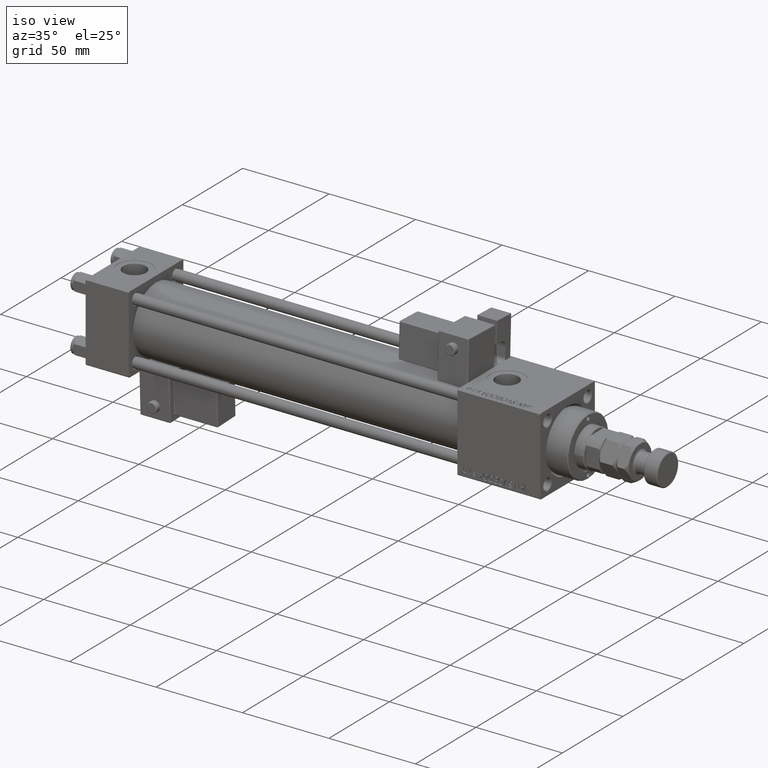
[diagram: clean part render]
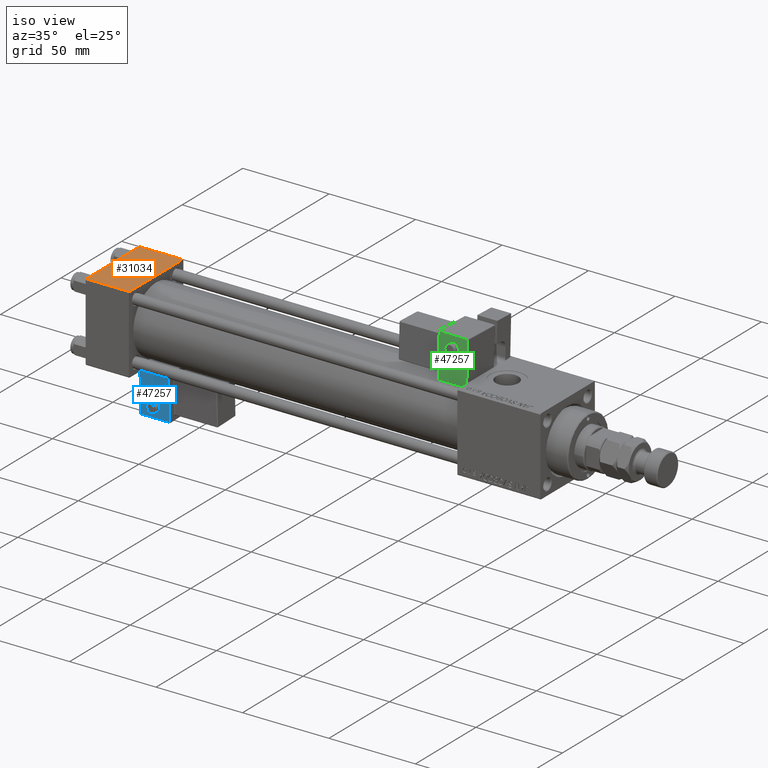
[diagram: same view with three faces highlighted in distinct colors, each labeled with its STEP entity id]
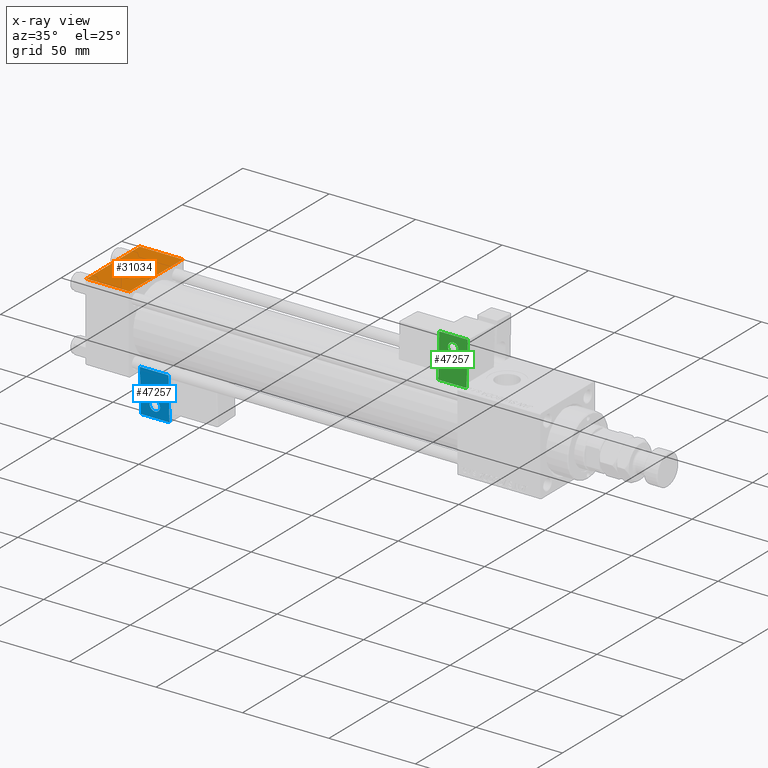
[diagram: x-ray of the same camera — body ghosted, the three highlighted faces saturated]
A machine part, iso view with three faces highlighted in distinct colors.
The next image is the same camera in x-ray (body ghosted, the three faces saturated) — at least one of them is partly hidden behind the body in this view.
Their STEP definitions:

[orange] entity #31034 — the highlighted planar face has unit normal (0, 0, -1).
#17 = EDGE_LOOP ( 'NONE', ( #2150, #1779 ) ) ;
#1244 = CARTESIAN_POINT ( 'NONE',  ( 25.00000000000000000, 22.50000000000000000, 22.50000000000000355 ) ) ;
#1574 = EDGE_CURVE ( 'NONE', #50907, #28562, #43920, .T. ) ;
#1725 = CARTESIAN_POINT ( 'NONE',  ( 25.00000000000000000, -21.99999999999997868, 22.50000000000000000 ) ) ;
#1779 = ORIENTED_EDGE ( 'NONE', *, *, #1574, .F. ) ;
#2150 = ORIENTED_EDGE ( 'NONE', *, *, #44711, .F. ) ;
#4477 = VECTOR ( 'NONE', #18783, 1000.000000000000000 ) ;
#6136 = CARTESIAN_POINT ( 'NONE',  ( 2.500000000000003997, -5.100766768294543310E-16, 22.50000000000000000 ) ) ;
#6388 = ORIENTED_EDGE ( 'NONE', *, *, #11279, .T. ) ;
#7810 = LINE ( 'NONE', #8345, #31891 ) ;
#8345 = CARTESIAN_POINT ( 'NONE',  ( 25.00000000000000000, -21.99999999999999289, 22.50000000000000000 ) ) ;
#8431 = CIRCLE ( 'NONE', #33839, 9.999999999999998224 ) ;
#8593 = VERTEX_POINT ( 'NONE', #24150 ) ;
#10019 = PLANE ( 'NONE',  #44856 ) ;
#11279 = EDGE_CURVE ( 'NONE', #8593, #43375, #7810, .T. ) ;
#11896 = EDGE_CURVE ( 'NONE', #44316, #8593, #31164, .T. ) ;
#12329 = CARTESIAN_POINT ( 'NONE',  ( 12.50000000000000000, -1.734723475976807094E-15, 22.50000000000000000 ) ) ;
#13253 = ORIENTED_EDGE ( 'NONE', *, *, #40896, .F. ) ;
#14029 = ORIENTED_EDGE ( 'NONE', *, *, #11896, .T. ) ;
#15237 = DIRECTION ( 'NONE',  ( 0.000000000000000000, -1.000000000000000000, -7.709882115452476934E-17 ) ) ;
#17166 = LINE ( 'NONE', #1244, #31031 ) ;
#18230 = CARTESIAN_POINT ( 'NONE',  ( 22.50000000000000000, -1.734723475976807094E-15, 22.50000000000000000 ) ) ;
#18248 = DIRECTION ( 'NONE',  ( 0.000000000000000000, -1.000000000000000000, -7.709882115452476934E-17 ) ) ;
#18783 = DIRECTION ( 'NONE',  ( -1.000000000000000000, 0.000000000000000000, 0.000000000000000000 ) ) ;
#19706 = EDGE_LOOP ( 'NONE', ( #14029, #6388, #13253, #25677 ) ) ;
#19796 = DIRECTION ( 'NONE',  ( 0.000000000000000000, 0.000000000000000000, 1.000000000000000000 ) ) ;
#22081 = DIRECTION ( 'NONE',  ( 0.000000000000000000, 7.709882115452476934E-17, -1.000000000000000000 ) ) ;
#24150 = CARTESIAN_POINT ( 'NONE',  ( 0.000000000000000000, -21.99999999999997868, 22.50000000000000000 ) ) ;
#24535 = DIRECTION ( 'NONE',  ( 1.000000000000000000, 0.000000000000000000, 0.000000000000000000 ) ) ;
#25677 = ORIENTED_EDGE ( 'NONE', *, *, #30117, .T. ) ;
#25727 = VERTEX_POINT ( 'NONE', #54056 ) ;
#26206 = DIRECTION ( 'NONE',  ( 0.000000000000000000, 1.000000000000000000, 7.709882115452476934E-17 ) ) ;
#27318 = CARTESIAN_POINT ( 'NONE',  ( 0.000000000000000000, 22.50000000000000000, 22.50000000000000355 ) ) ;
#27822 = LINE ( 'NONE', #39885, #4477 ) ;
#28562 = VERTEX_POINT ( 'NONE', #18230 ) ;
#30117 = EDGE_CURVE ( 'NONE', #25727, #44316, #27822, .T. ) ;
#31031 = VECTOR ( 'NONE', #18248, 1000.000000000000000 ) ;
#31034 = ADVANCED_FACE ( 'NONE', ( #51164, #38529 ), #10019, .F. ) ;
#31072 = VECTOR ( 'NONE', #15237, 1000.000000000000000 ) ;
#31164 = LINE ( 'NONE', #27318, #31072 ) ;
#31668 = AXIS2_PLACEMENT_3D ( 'NONE', #50423, #19796, #46015 ) ;
#31891 = VECTOR ( 'NONE', #24535, 1000.000000000000000 ) ;
#33839 = AXIS2_PLACEMENT_3D ( 'NONE', #12329, #46326, #46055 ) ;
#38529 = FACE_OUTER_BOUND ( 'NONE', #19706, .T. ) ;
#39885 = CARTESIAN_POINT ( 'NONE',  ( 0.000000000000000000, 21.99999999999999289, 22.50000000000000355 ) ) ;
#40896 = EDGE_CURVE ( 'NONE', #25727, #43375, #17166, .T. ) ;
#43375 = VERTEX_POINT ( 'NONE', #1725 ) ;
#43759 = CARTESIAN_POINT ( 'NONE',  ( 0.000000000000000000, 21.99999999999999289, 22.50000000000000355 ) ) ;
#43920 = CIRCLE ( 'NONE', #31668, 9.999999999999998224 ) ;
#44316 = VERTEX_POINT ( 'NONE', #43759 ) ;
#44711 = EDGE_CURVE ( 'NONE', #28562, #50907, #8431, .T. ) ;
#44856 = AXIS2_PLACEMENT_3D ( 'NONE', #51982, #22081, #26206 ) ;
#46015 = DIRECTION ( 'NONE',  ( 1.000000000000000000, 0.000000000000000000, 0.000000000000000000 ) ) ;
#46055 = DIRECTION ( 'NONE',  ( 1.000000000000000000, 0.000000000000000000, 0.000000000000000000 ) ) ;
#46326 = DIRECTION ( 'NONE',  ( 0.000000000000000000, 0.000000000000000000, 1.000000000000000000 ) ) ;
#50423 = CARTESIAN_POINT ( 'NONE',  ( 12.50000000000000000, -1.734723475976807094E-15, 22.50000000000000000 ) ) ;
#50907 = VERTEX_POINT ( 'NONE', #6136 ) ;
#51164 = FACE_BOUND ( 'NONE', #17, .T. ) ;
#51982 = CARTESIAN_POINT ( 'NONE',  ( 25.00000000000000000, 22.50000000000000000, 22.50000000000000355 ) ) ;
#54056 = CARTESIAN_POINT ( 'NONE',  ( 25.00000000000000000, 21.99999999999999289, 22.50000000000000355 ) ) ;

[blue] entity #47257 — the highlighted planar face has unit normal (0, 0.9994, 0.0353).
#260 = EDGE_CURVE ( 'NONE', #1995, #36800, #1104, .T. ) ;
#1104 = LINE ( 'NONE', #21691, #30755 ) ;
#1224 = CARTESIAN_POINT ( 'NONE',  ( 4.857225732735059864E-15, -33.75000000000000000, 24.50000000000000000 ) ) ;
#1338 = LINE ( 'NONE', #50994, #43316 ) ;
#1995 = VERTEX_POINT ( 'NONE', #23177 ) ;
#2195 = EDGE_CURVE ( 'NONE', #14242, #33135, #32557, .T. ) ;
#2398 = DIRECTION ( 'NONE',  ( 0.000000000000000000, 1.000000000000000000, 0.000000000000000000 ) ) ;
#3466 = VERTEX_POINT ( 'NONE', #47611 ) ;
#3974 = CARTESIAN_POINT ( 'NONE',  ( -8.250000000000003553, -33.75000000000000000, -0.5000000000000002220 ) ) ;
#5513 = VERTEX_POINT ( 'NONE', #32037 ) ;
#7050 = DIRECTION ( 'NONE',  ( 0.000000000000000000, -0.000000000000000000, 1.000000000000000000 ) ) ;
#7502 = AXIS2_PLACEMENT_3D ( 'NONE', #43308, #43851, #22479 ) ;
#8321 = DIRECTION ( 'NONE',  ( 0.000000000000000000, 0.000000000000000000, 1.000000000000000000 ) ) ;
#11160 = ORIENTED_EDGE ( 'NONE', *, *, #31105, .T. ) ;
#11433 = FACE_OUTER_BOUND ( 'NONE', #16073, .T. ) ;
#11624 = EDGE_CURVE ( 'NONE', #5513, #3466, #1338, .T. ) ;
#11886 = CIRCLE ( 'NONE', #7502, 2.999999999999999112 ) ;
#12998 = EDGE_CURVE ( 'NONE', #3466, #1995, #26734, .T. ) ;
#14063 = EDGE_CURVE ( 'NONE', #33135, #14242, #11886, .T. ) ;
#14242 = VERTEX_POINT ( 'NONE', #34978 ) ;
#14449 = ORIENTED_EDGE ( 'NONE', *, *, #11624, .T. ) ;
#14500 = DIRECTION ( 'NONE',  ( -1.334402673828313339E-16, 0.000000000000000000, 1.000000000000000000 ) ) ;
#15910 = ORIENTED_EDGE ( 'NONE', *, *, #260, .T. ) ;
#16028 = CARTESIAN_POINT ( 'NONE',  ( -4.336808689942017736E-16, -33.75000000000000000, 6.000000000000001776 ) ) ;
#16073 = EDGE_LOOP ( 'NONE', ( #50245, #15910, #11160, #14449 ) ) ;
#20519 = ORIENTED_EDGE ( 'NONE', *, *, #2195, .F. ) ;
#20590 = VECTOR ( 'NONE', #46749, 1000.000000000000000 ) ;
#21691 = CARTESIAN_POINT ( 'NONE',  ( -8.250000000000003553, -33.75000000000000000, 1.100882205908358788E-15 ) ) ;
#22479 = DIRECTION ( 'NONE',  ( 0.000000000000000000, 0.000000000000000000, 1.000000000000000000 ) ) ;
#23177 = CARTESIAN_POINT ( 'NONE',  ( -8.250000000000000000, -33.75000000000000000, 24.50000000000000355 ) ) ;
#23180 = CARTESIAN_POINT ( 'NONE',  ( 0.000000000000000000, -33.75000000000000000, -0.5000000000000002220 ) ) ;
#23558 = ORIENTED_EDGE ( 'NONE', *, *, #14063, .F. ) ;
#24147 = AXIS2_PLACEMENT_3D ( 'NONE', #32008, #2398, #7050 ) ;
#25528 = DIRECTION ( 'NONE',  ( -1.334402673828313093E-16, 0.000000000000000000, -1.000000000000000000 ) ) ;
#26734 = LINE ( 'NONE', #1224, #20590 ) ;
#26961 = EDGE_LOOP ( 'NONE', ( #23558, #20519 ) ) ;
#27305 = CARTESIAN_POINT ( 'NONE',  ( -4.336808689942017736E-16, -33.75000000000000000, 9.000000000000001776 ) ) ;
#30755 = VECTOR ( 'NONE', #25528, 1000.000000000000000 ) ;
#31105 = EDGE_CURVE ( 'NONE', #36800, #5513, #52253, .T. ) ;
#32008 = CARTESIAN_POINT ( 'NONE',  ( 0.000000000000000000, -33.75000000000000000, 0.000000000000000000 ) ) ;
#32037 = CARTESIAN_POINT ( 'NONE',  ( 8.250000000000003553, -33.75000000000000000, -0.5000000000000002220 ) ) ;
#32557 = CIRCLE ( 'NONE', #33412, 2.999999999999999112 ) ;
#33135 = VERTEX_POINT ( 'NONE', #27305 ) ;
#33412 = AXIS2_PLACEMENT_3D ( 'NONE', #16028, #49474, #8321 ) ;
#33452 = VECTOR ( 'NONE', #40154, 1000.000000000000000 ) ;
#34978 = CARTESIAN_POINT ( 'NONE',  ( -6.628682924999581145E-17, -33.75000000000000000, 3.000000000000001776 ) ) ;
#36124 = FACE_BOUND ( 'NONE', #26961, .T. ) ;
#36800 = VERTEX_POINT ( 'NONE', #3974 ) ;
#40154 = DIRECTION ( 'NONE',  ( 1.000000000000000000, 0.000000000000000000, 0.000000000000000000 ) ) ;
#43308 = CARTESIAN_POINT ( 'NONE',  ( -4.336808689942017736E-16, -33.75000000000000000, 6.000000000000001776 ) ) ;
#43316 = VECTOR ( 'NONE', #14500, 1000.000000000000000 ) ;
#43851 = DIRECTION ( 'NONE',  ( -0.000000000000000000, -1.000000000000000000, -0.000000000000000000 ) ) ;
#46749 = DIRECTION ( 'NONE',  ( -1.000000000000000000, 0.000000000000000000, 1.982541115402065110E-16 ) ) ;
#47257 = ADVANCED_FACE ( 'NONE', ( #11433, #36124 ), #49014, .F. ) ;
#47611 = CARTESIAN_POINT ( 'NONE',  ( 8.250000000000000000, -33.75000000000000000, 24.50000000000000000 ) ) ;
#49014 = PLANE ( 'NONE',  #24147 ) ;
#49474 = DIRECTION ( 'NONE',  ( -0.000000000000000000, -1.000000000000000000, -0.000000000000000000 ) ) ;
#50245 = ORIENTED_EDGE ( 'NONE', *, *, #12998, .T. ) ;
#50994 = CARTESIAN_POINT ( 'NONE',  ( 8.250000000000003553, -33.75000000000000000, 1.100882205908358986E-15 ) ) ;
#52253 = LINE ( 'NONE', #23180, #33452 ) ;

[green] entity #47257 — the highlighted planar face has unit normal (0, 0.9994, -0.0353).
#260 = EDGE_CURVE ( 'NONE', #1995, #36800, #1104, .T. ) ;
#1104 = LINE ( 'NONE', #21691, #30755 ) ;
#1224 = CARTESIAN_POINT ( 'NONE',  ( 4.857225732735059864E-15, -33.75000000000000000, 24.50000000000000000 ) ) ;
#1338 = LINE ( 'NONE', #50994, #43316 ) ;
#1995 = VERTEX_POINT ( 'NONE', #23177 ) ;
#2195 = EDGE_CURVE ( 'NONE', #14242, #33135, #32557, .T. ) ;
#2398 = DIRECTION ( 'NONE',  ( 0.000000000000000000, 1.000000000000000000, 0.000000000000000000 ) ) ;
#3466 = VERTEX_POINT ( 'NONE', #47611 ) ;
#3974 = CARTESIAN_POINT ( 'NONE',  ( -8.250000000000003553, -33.75000000000000000, -0.5000000000000002220 ) ) ;
#5513 = VERTEX_POINT ( 'NONE', #32037 ) ;
#7050 = DIRECTION ( 'NONE',  ( 0.000000000000000000, -0.000000000000000000, 1.000000000000000000 ) ) ;
#7502 = AXIS2_PLACEMENT_3D ( 'NONE', #43308, #43851, #22479 ) ;
#8321 = DIRECTION ( 'NONE',  ( 0.000000000000000000, 0.000000000000000000, 1.000000000000000000 ) ) ;
#11160 = ORIENTED_EDGE ( 'NONE', *, *, #31105, .T. ) ;
#11433 = FACE_OUTER_BOUND ( 'NONE', #16073, .T. ) ;
#11624 = EDGE_CURVE ( 'NONE', #5513, #3466, #1338, .T. ) ;
#11886 = CIRCLE ( 'NONE', #7502, 2.999999999999999112 ) ;
#12998 = EDGE_CURVE ( 'NONE', #3466, #1995, #26734, .T. ) ;
#14063 = EDGE_CURVE ( 'NONE', #33135, #14242, #11886, .T. ) ;
#14242 = VERTEX_POINT ( 'NONE', #34978 ) ;
#14449 = ORIENTED_EDGE ( 'NONE', *, *, #11624, .T. ) ;
#14500 = DIRECTION ( 'NONE',  ( -1.334402673828313339E-16, 0.000000000000000000, 1.000000000000000000 ) ) ;
#15910 = ORIENTED_EDGE ( 'NONE', *, *, #260, .T. ) ;
#16028 = CARTESIAN_POINT ( 'NONE',  ( -4.336808689942017736E-16, -33.75000000000000000, 6.000000000000001776 ) ) ;
#16073 = EDGE_LOOP ( 'NONE', ( #50245, #15910, #11160, #14449 ) ) ;
#20519 = ORIENTED_EDGE ( 'NONE', *, *, #2195, .F. ) ;
#20590 = VECTOR ( 'NONE', #46749, 1000.000000000000000 ) ;
#21691 = CARTESIAN_POINT ( 'NONE',  ( -8.250000000000003553, -33.75000000000000000, 1.100882205908358788E-15 ) ) ;
#22479 = DIRECTION ( 'NONE',  ( 0.000000000000000000, 0.000000000000000000, 1.000000000000000000 ) ) ;
#23177 = CARTESIAN_POINT ( 'NONE',  ( -8.250000000000000000, -33.75000000000000000, 24.50000000000000355 ) ) ;
#23180 = CARTESIAN_POINT ( 'NONE',  ( 0.000000000000000000, -33.75000000000000000, -0.5000000000000002220 ) ) ;
#23558 = ORIENTED_EDGE ( 'NONE', *, *, #14063, .F. ) ;
#24147 = AXIS2_PLACEMENT_3D ( 'NONE', #32008, #2398, #7050 ) ;
#25528 = DIRECTION ( 'NONE',  ( -1.334402673828313093E-16, 0.000000000000000000, -1.000000000000000000 ) ) ;
#26734 = LINE ( 'NONE', #1224, #20590 ) ;
#26961 = EDGE_LOOP ( 'NONE', ( #23558, #20519 ) ) ;
#27305 = CARTESIAN_POINT ( 'NONE',  ( -4.336808689942017736E-16, -33.75000000000000000, 9.000000000000001776 ) ) ;
#30755 = VECTOR ( 'NONE', #25528, 1000.000000000000000 ) ;
#31105 = EDGE_CURVE ( 'NONE', #36800, #5513, #52253, .T. ) ;
#32008 = CARTESIAN_POINT ( 'NONE',  ( 0.000000000000000000, -33.75000000000000000, 0.000000000000000000 ) ) ;
#32037 = CARTESIAN_POINT ( 'NONE',  ( 8.250000000000003553, -33.75000000000000000, -0.5000000000000002220 ) ) ;
#32557 = CIRCLE ( 'NONE', #33412, 2.999999999999999112 ) ;
#33135 = VERTEX_POINT ( 'NONE', #27305 ) ;
#33412 = AXIS2_PLACEMENT_3D ( 'NONE', #16028, #49474, #8321 ) ;
#33452 = VECTOR ( 'NONE', #40154, 1000.000000000000000 ) ;
#34978 = CARTESIAN_POINT ( 'NONE',  ( -6.628682924999581145E-17, -33.75000000000000000, 3.000000000000001776 ) ) ;
#36124 = FACE_BOUND ( 'NONE', #26961, .T. ) ;
#36800 = VERTEX_POINT ( 'NONE', #3974 ) ;
#40154 = DIRECTION ( 'NONE',  ( 1.000000000000000000, 0.000000000000000000, 0.000000000000000000 ) ) ;
#43308 = CARTESIAN_POINT ( 'NONE',  ( -4.336808689942017736E-16, -33.75000000000000000, 6.000000000000001776 ) ) ;
#43316 = VECTOR ( 'NONE', #14500, 1000.000000000000000 ) ;
#43851 = DIRECTION ( 'NONE',  ( -0.000000000000000000, -1.000000000000000000, -0.000000000000000000 ) ) ;
#46749 = DIRECTION ( 'NONE',  ( -1.000000000000000000, 0.000000000000000000, 1.982541115402065110E-16 ) ) ;
#47257 = ADVANCED_FACE ( 'NONE', ( #11433, #36124 ), #49014, .F. ) ;
#47611 = CARTESIAN_POINT ( 'NONE',  ( 8.250000000000000000, -33.75000000000000000, 24.50000000000000000 ) ) ;
#49014 = PLANE ( 'NONE',  #24147 ) ;
#49474 = DIRECTION ( 'NONE',  ( -0.000000000000000000, -1.000000000000000000, -0.000000000000000000 ) ) ;
#50245 = ORIENTED_EDGE ( 'NONE', *, *, #12998, .T. ) ;
#50994 = CARTESIAN_POINT ( 'NONE',  ( 8.250000000000003553, -33.75000000000000000, 1.100882205908358986E-15 ) ) ;
#52253 = LINE ( 'NONE', #23180, #33452 ) ;